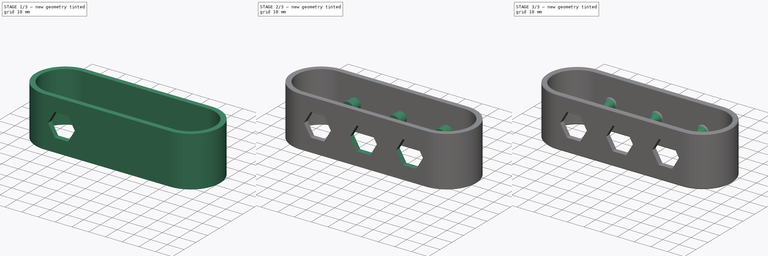
[diagram: build sequence overview — one tinted view per stage of 3, left to right]
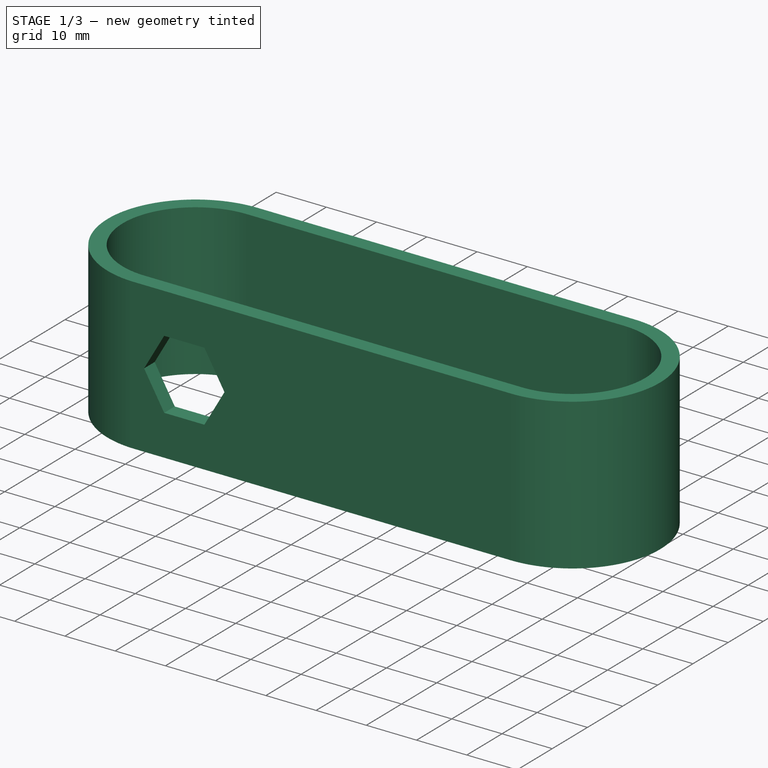
[diagram: stage 1 of 3 — iso view after this stage's code; geometry added in this stage tinted green]
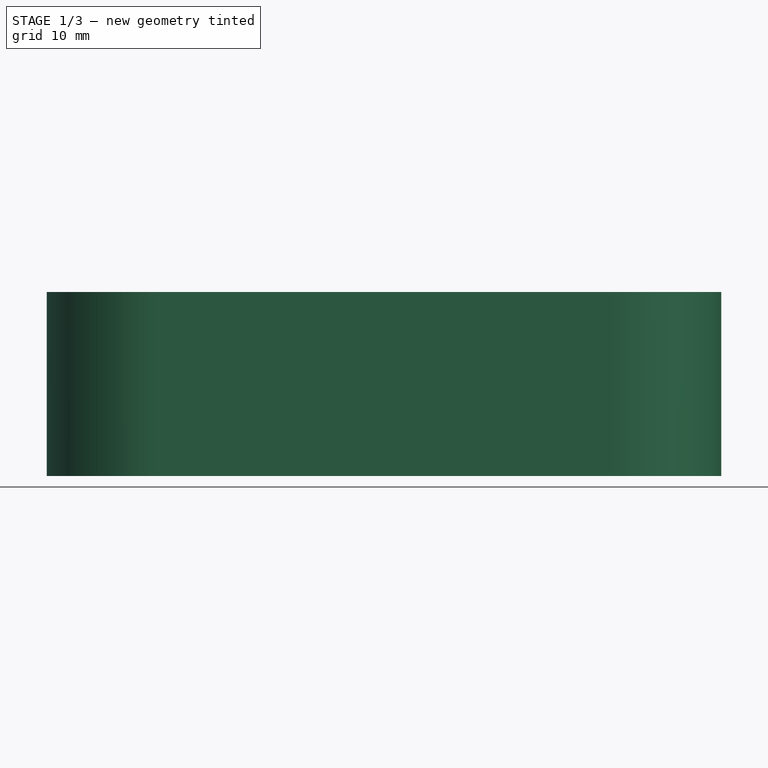
[diagram: stage 1 of 3 — front view after this stage's code; geometry added in this stage tinted green]
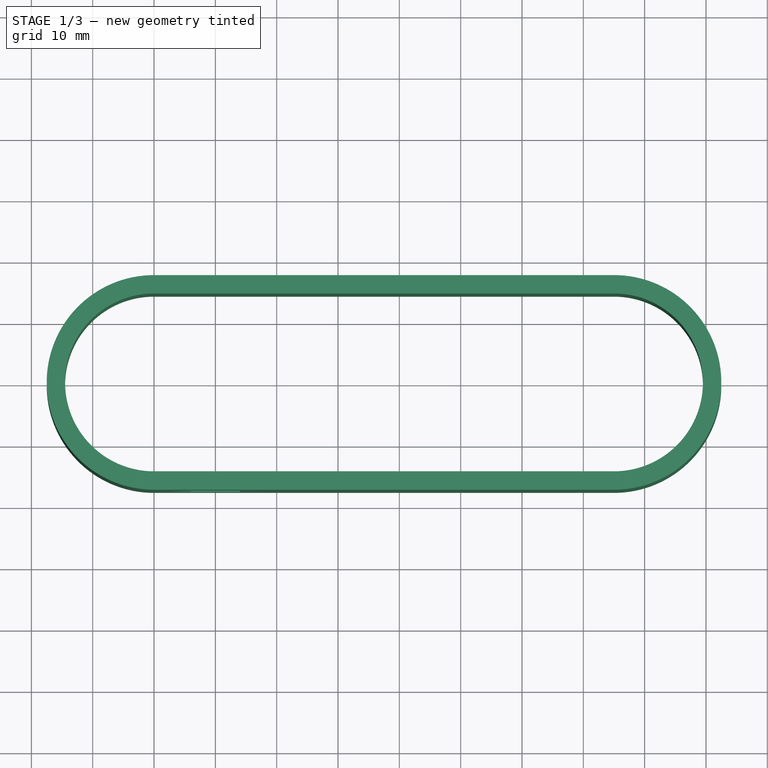
[diagram: stage 1 of 3 — top view after this stage's code; geometry added in this stage tinted green]
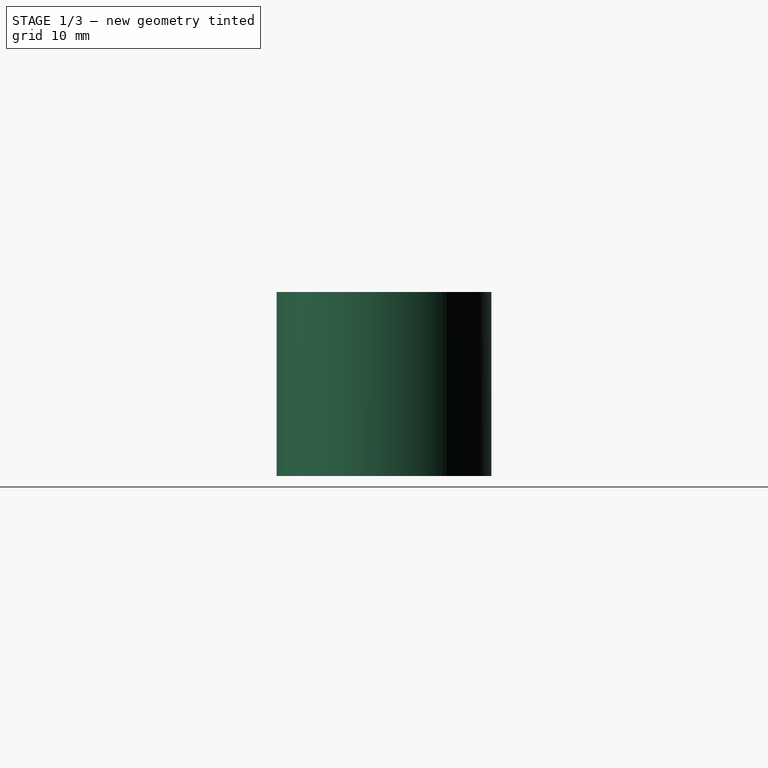
[diagram: stage 1 of 3 — right view after this stage's code; geometry added in this stage tinted green]
FCSTD DOCUMENT  (FreeCAD 0.19R24276 (Git))
Label: Tutorial 3
License: All rights reserved
LicenseURL: http://en.wikipedia.org/wiki/All_rights_reserved
objects: Sketcher::SketchObject×3, PartDesign::Pad×2, PartDesign::LinearPattern×2, PartDesign::Pocket×1, PartDesign::Draft×1, PartDesign::Chamfer×1, PartDesign::Body×1
note: 16 computed .brp shape members not serialized (recipe doc carries the construction recipe); baked Part::Feature solids carry a one-line shape summary decoded from their .brp

FEATURE [Sketcher::SketchObject] Sketch
  FullyConstrained = true
  MapMode = 5
  Support = -> [XY_Plane]
  sketch-geometry (8):
    g0: ArcOfCircle CenterX=0 CenterY=0 CenterZ=0 NormalX=0 NormalY=0 NormalZ=1 AngleXU=0 Radius=14.5 StartAngle=1.5708 EndAngle=4.71239
    g1: ArcOfCircle CenterX=75 CenterY=0 CenterZ=0 NormalX=0 NormalY=0 NormalZ=1 AngleXU=0 Radius=14.5 StartAngle=4.71239 EndAngle=7.85398
    g2: LineSegment StartX=0 StartY=-14.5 StartZ=0 EndX=75 EndY=-14.5 EndZ=0
    g3: LineSegment StartX=-2.3e-15 StartY=14.5 StartZ=0 EndX=75 EndY=14.5 EndZ=0
    g4: ArcOfCircle CenterX=0 CenterY=0 CenterZ=0 NormalX=0 NormalY=0 NormalZ=1 AngleXU=0 Radius=17.5 StartAngle=1.5708 EndAngle=4.71239
    g5: ArcOfCircle CenterX=75 CenterY=0 CenterZ=0 NormalX=0 NormalY=0 NormalZ=1 AngleXU=0 Radius=17.5 StartAngle=4.71239 EndAngle=7.85398
    g6: LineSegment StartX=0 StartY=-17.5 StartZ=0 EndX=75 EndY=-17.5 EndZ=0
    g7: LineSegment StartX=-2.8e-15 StartY=17.5 StartZ=0 EndX=75 EndY=17.5 EndZ=0
  constraints (17):
    c: Tangent(g0,g3) = 1.5708
    c: Tangent(g0,g2) = -1.5708
    c: Tangent(g2,g1) = -1.5708
    c: Tangent(g3,g1) = 1.5708
    c: Horizontal(g2)
    c: Equal(g0,g1)
    c: Distance(g2) = 75
    c: Distance(g0,g0) = 29
    c: Tangent(g4,g7) = 1.5708
    c: Tangent(g4,g6) = -1.5708
    c: Tangent(g6,g5) = -1.5708
    c: Tangent(g7,g5) = 1.5708
    c: Horizontal(g6)
    c: Coincident(g4,g0)
    c: Distance(g4,g3) = 3
    c: Coincident(g5,g1)
    c: Coincident(g0,g-1)
FEATURE [PartDesign::Pad] Pad
  Direction = (1,1,1)
  Length = 30
  Length2 = 100
  Profile = -> Sketch
  Type = 0
FEATURE [Sketcher::SketchObject] Sketch001
  FullyConstrained = true
  MapMode = 5
  Placement = pos=(0,-17.5,0) rot=(1,0,0;1.5708rad)
  Support = -> [Pad]
  sketch-geometry (7):
    g0: LineSegment StartX=14 StartY=8.0718 StartZ=0 EndX=18 EndY=15 EndZ=0
    g1: LineSegment StartX=18 StartY=15 StartZ=0 EndX=14 EndY=21.9282 EndZ=0
    g2: LineSegment StartX=14 StartY=21.9282 StartZ=0 EndX=6 EndY=21.9282 EndZ=0
    g3: LineSegment StartX=6 StartY=21.9282 StartZ=0 EndX=2 EndY=15 EndZ=0
    g4: LineSegment StartX=2 StartY=15 StartZ=0 EndX=6 EndY=8.0718 EndZ=0
    g5: LineSegment StartX=6 StartY=8.0718 StartZ=0 EndX=14 EndY=8.0718 EndZ=0
    g6: Circle CenterX=10 CenterY=15 CenterZ=0 NormalX=0 NormalY=0 NormalZ=1 AngleXU=0 Radius=8
  constraints (17):
    c: Coincident(g0,g1)
    c: Coincident(g1,g2)
    c: Coincident(g2,g3)
    c: Coincident(g3,g4)
    c: Coincident(g4,g5)
    c: Coincident(g5,g0)
    c: Equal(g0, g1-g5) x5
    c: PointOnObject(g0,g6)
    c: PointOnObject(g1,g6)
    c: PointOnObject(g2,g6)
    c: PointOnObject(g3,g6)
    c: PointOnObject(g4,g6)
    c: PointOnObject(g5,g6)
    c: Horizontal(g5)
    c: Radius(g6) = 8
    c: DistanceX(g-1,g6) = 10
    c: DistanceY(g-1,g6) = 15
FEATURE [PartDesign::Pocket] Pocket
  BaseFeature = -> Pad
  Length = 0
  Length2 = 100
  Profile = -> Sketch001
  Type = 2
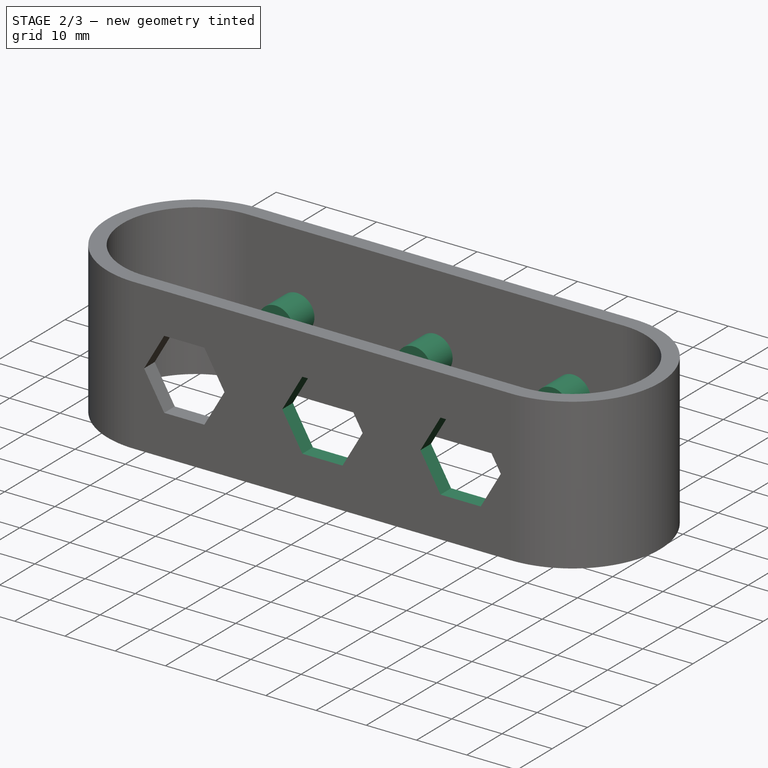
[diagram: stage 2 of 3 — iso view after this stage's code; geometry added in this stage tinted green]
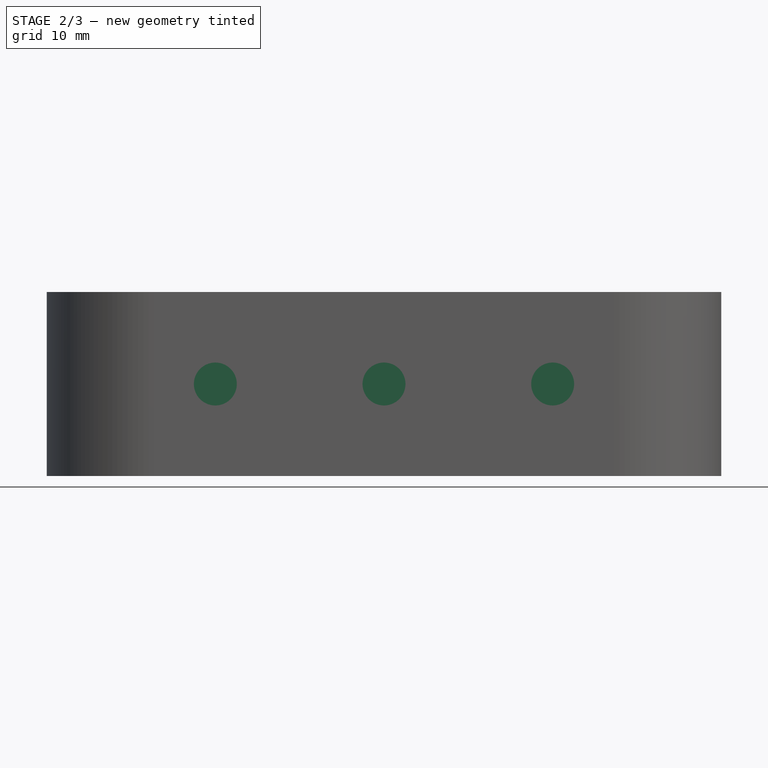
[diagram: stage 2 of 3 — front view after this stage's code; geometry added in this stage tinted green]
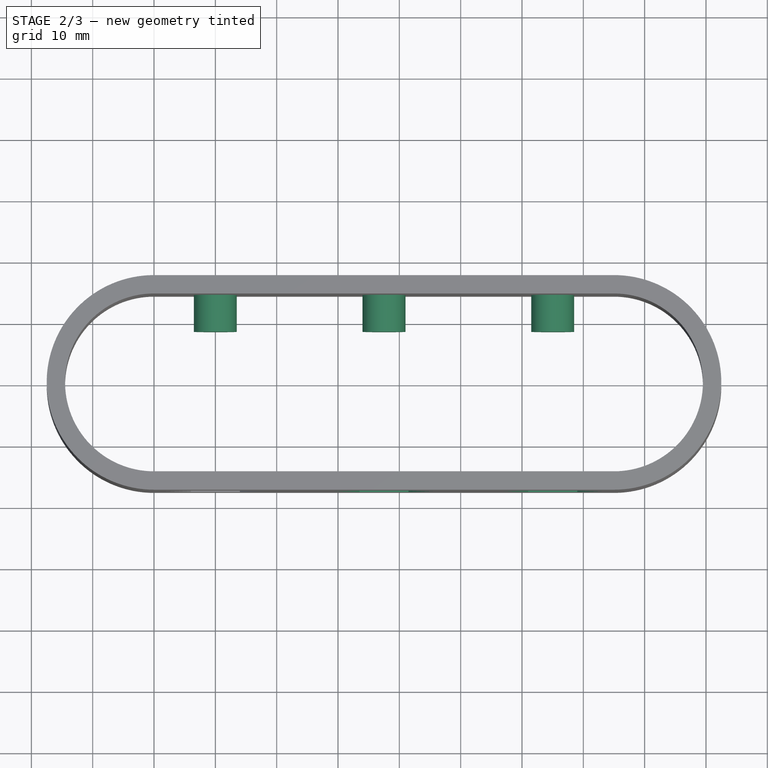
[diagram: stage 2 of 3 — top view after this stage's code; geometry added in this stage tinted green]
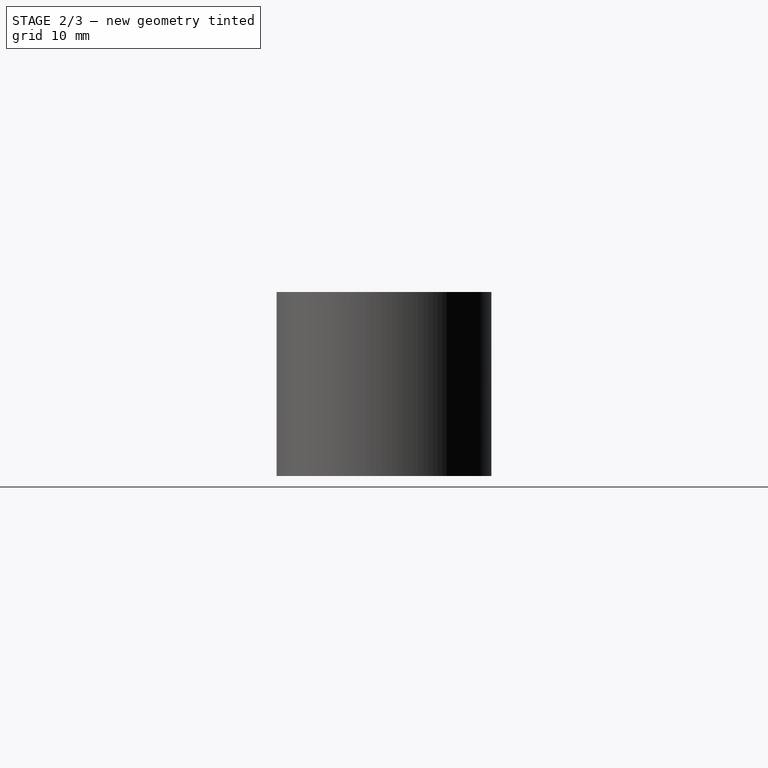
[diagram: stage 2 of 3 — right view after this stage's code; geometry added in this stage tinted green]
FEATURE [PartDesign::LinearPattern] LinearPattern
  BaseFeature = -> Pocket
  Direction = -> Sketch001 [H_Axis]
  Length = 55
  Occurrences = 3
  Originals = -> [Pocket]
FEATURE [Sketcher::SketchObject] Sketch002
  FullyConstrained = true
  MapMode = 5
  Placement = pos=(0,14.5,0) rot=(1,0,0;1.5708rad)
  Support = -> [LinearPattern]
  sketch-geometry (1):
    g0: Circle CenterX=10 CenterY=15 CenterZ=0 NormalX=0 NormalY=0 NormalZ=1 AngleXU=0 Radius=3.5
  constraints (3):
    c: DistanceY(g-1,g0) = 15
    c: DistanceX(g-2,g0) = 10
    c: Radius(g0) = 3.5
FEATURE [PartDesign::Pad] Pad001
  BaseFeature = -> LinearPattern
  Direction = (1,1,1)
  Length = 6
  Length2 = 100
  Profile = -> Sketch002
  Type = 0
FEATURE [PartDesign::LinearPattern] LinearPattern001
  BaseFeature = -> Pad001
  Direction = -> Sketch002 [H_Axis]
  Length = 55
  Occurrences = 3
  Originals = -> [Pad001]
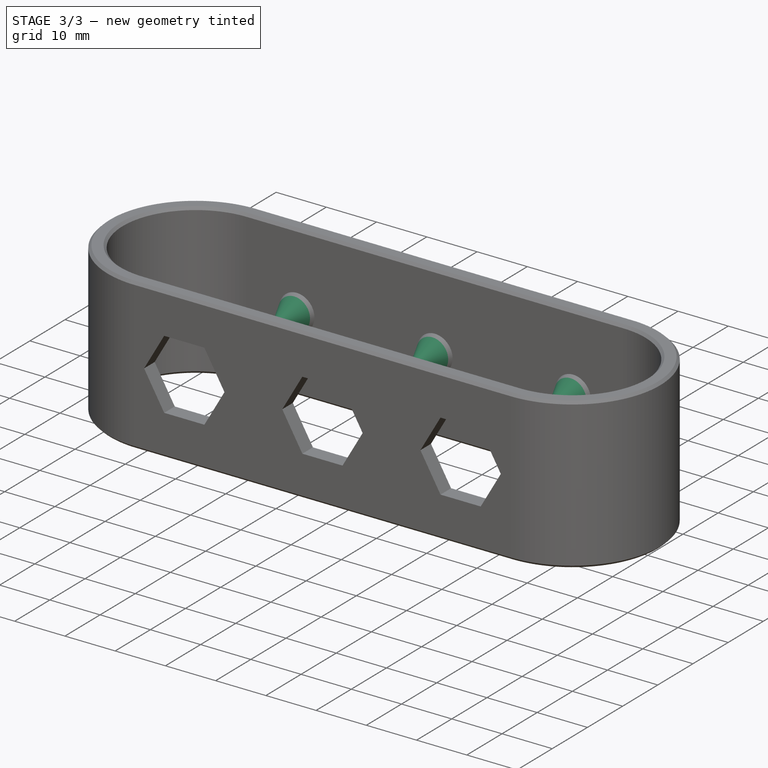
[diagram: stage 3 of 3 — iso view after this stage's code; geometry added in this stage tinted green]
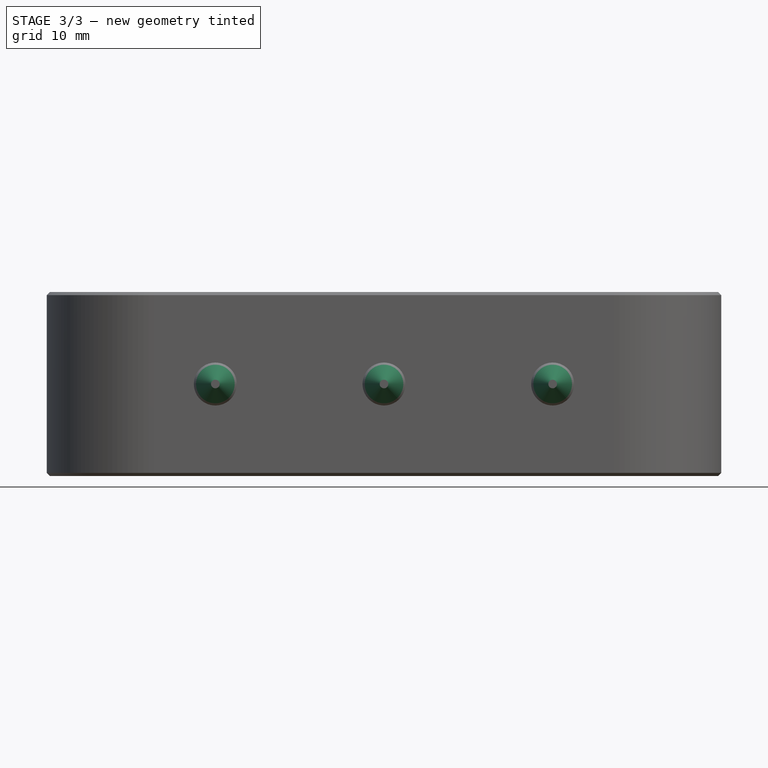
[diagram: stage 3 of 3 — front view after this stage's code; geometry added in this stage tinted green]
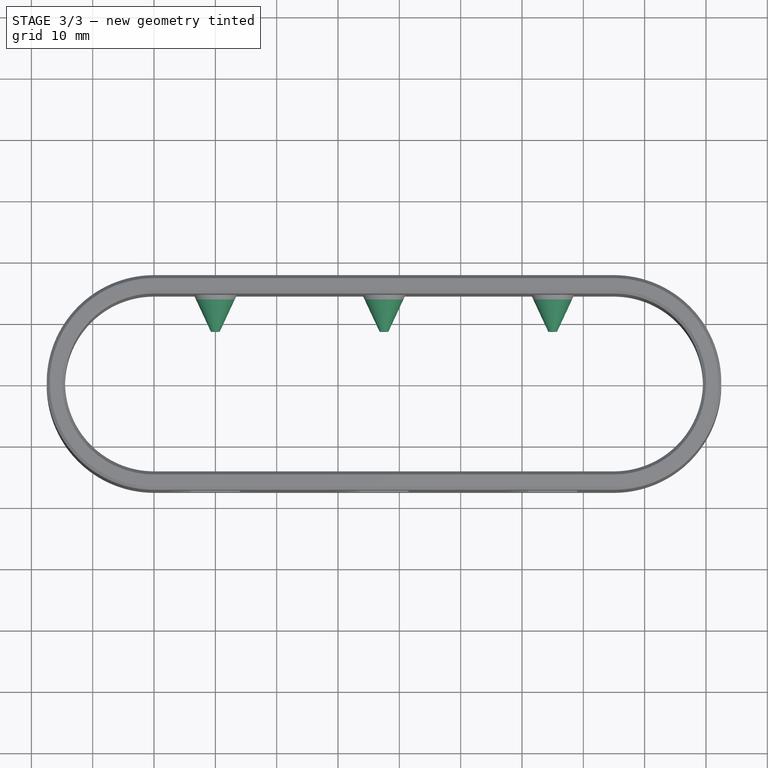
[diagram: stage 3 of 3 — top view after this stage's code; geometry added in this stage tinted green]
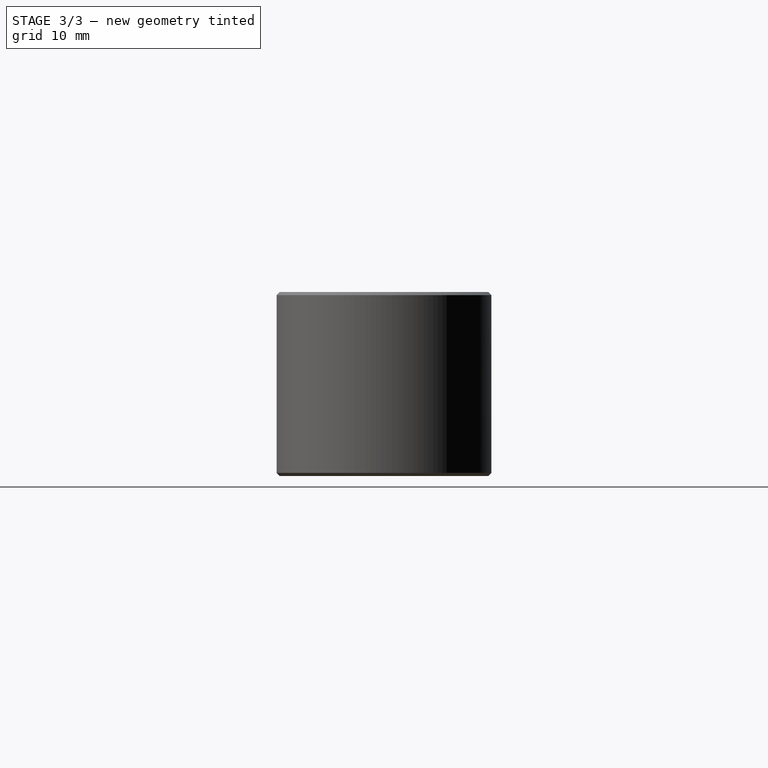
[diagram: stage 3 of 3 — right view after this stage's code; geometry added in this stage tinted green]
FEATURE [PartDesign::Draft] Draft
  Angle = 25
  Base = -> LinearPattern001 [Face29,Face30,Face31]
  BaseFeature = -> LinearPattern001
  NeutralPlane = -> LinearPattern001 [Face25]
  Reversed = true
  SupportTransform = false
FEATURE [PartDesign::Chamfer] Chamfer
  Angle = 45
  Base = -> Draft [Face5,Face4]
  BaseFeature = -> Draft
  ChamferType = 0
  FlipDirection = false
  Size = 0.5
  Size2 = 1
  SupportTransform = false
FEATURE [PartDesign::Body] Body
  Group = -> [Sketch,Pad,Sketch001,Pocket,LinearPattern,Sketch002,Pad001,LinearPattern001,Draft,Chamfer]
  Origin = -> Origin
  Tip = -> Chamfer
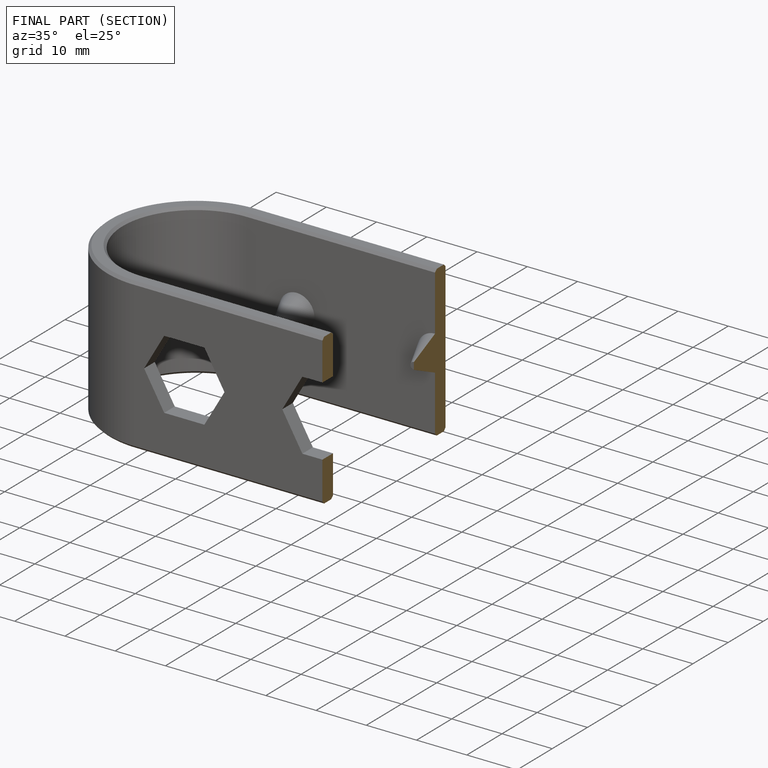
[diagram: finished part — half-section view (interior)]
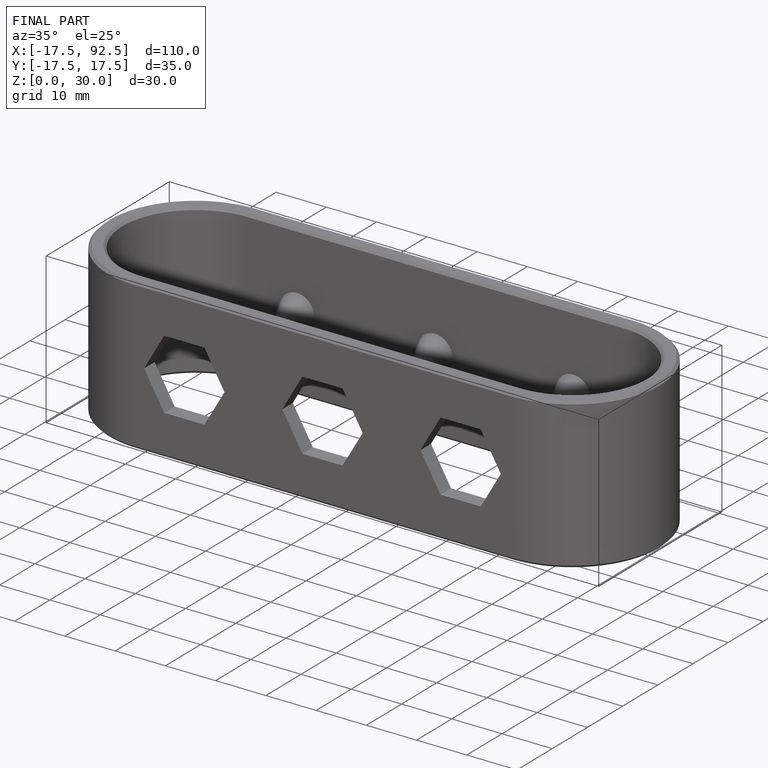
[diagram: finished part — iso view with bounding-box wireframe]
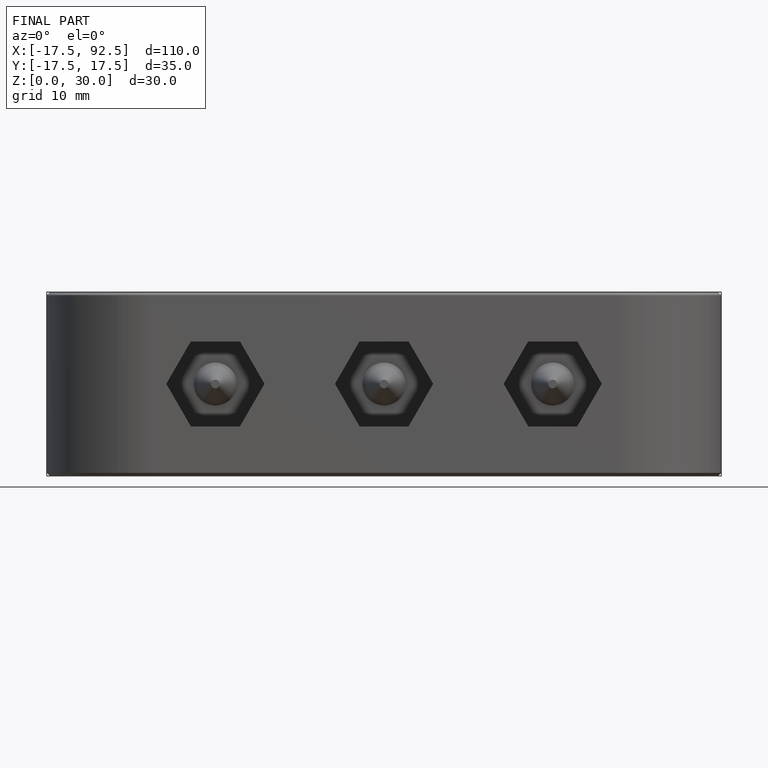
[diagram: finished part — front view with bounding-box wireframe]
